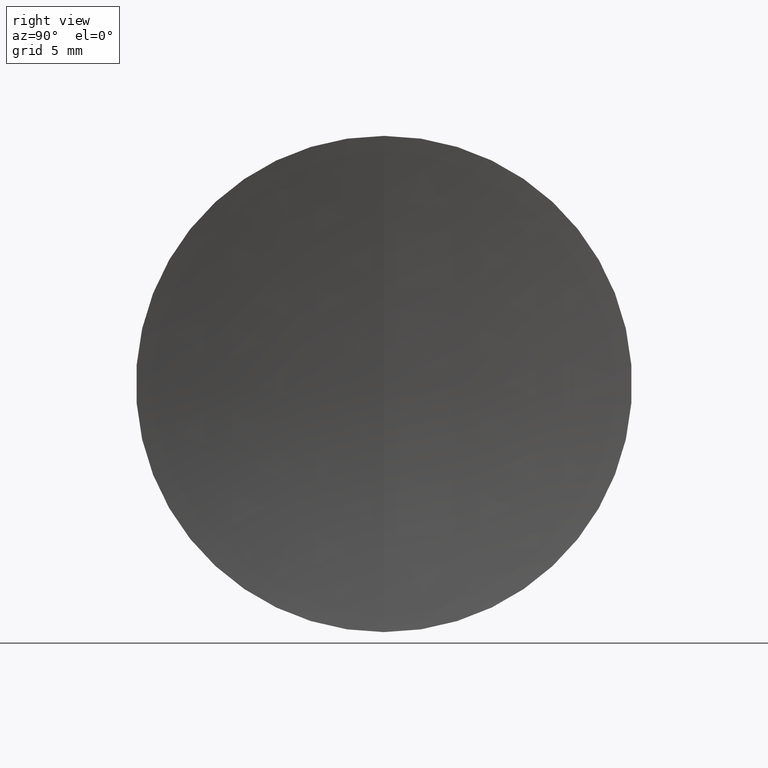
[diagram: clean part render]
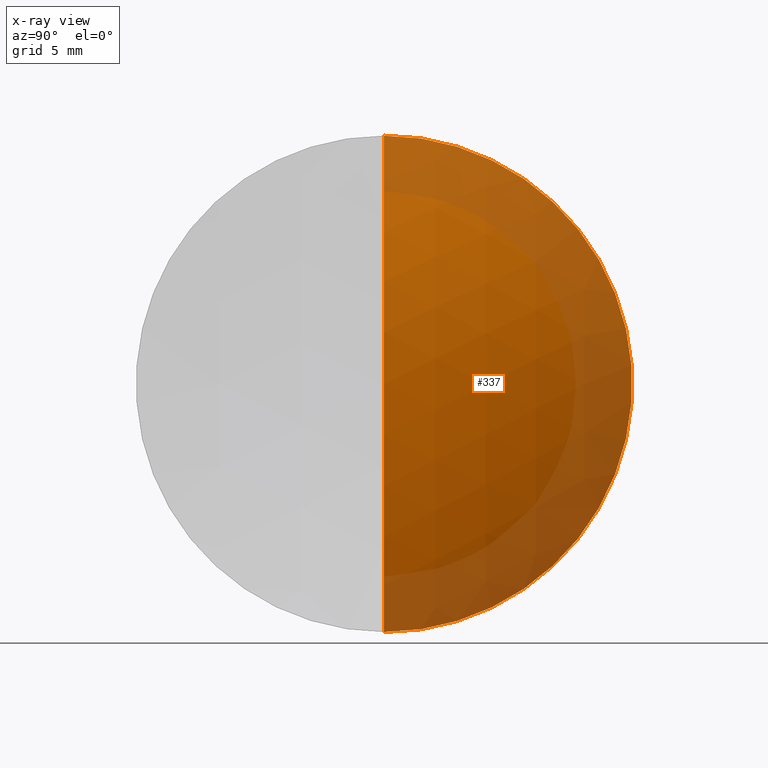
[diagram: x-ray — body ghosted, one internal face saturated and labeled with its STEP entity id]
A machine part, right view, then the same camera in x-ray: the body is ghosted and one INTERNAL B-rep face — a face not visible from any outside direction — is saturated and labeled: STEP entity #337.
In plain terms, the highlighted spherical surface has radius 33.91 mm.
Its self-contained STEP definition (entity closure, byte-faithful):
#23 = AXIS2_PLACEMENT_3D ( 'NONE', #227, #240, #153 ) ;
#68 = DIRECTION ( 'NONE',  ( 0.0000000000000000000, 1.000000000000000000, 0.0000000000000000000 ) ) ;
#87 = CIRCLE ( 'NONE', #108, 33.91000000000000400 ) ;
#108 = AXIS2_PLACEMENT_3D ( 'NONE', #190, #253, #323 ) ;
#111 = CARTESIAN_POINT ( 'NONE',  ( 68.06296674873206600, 0.0000000000000000000, 0.0000000000000000000 ) ) ;
#125 = DIRECTION ( 'NONE',  ( -0.0000000000000000000, 1.000000000000000000, 1.224646799147353200E-016 ) ) ;
#126 = DIRECTION ( 'NONE',  ( 0.0000000000000000000, -1.224646799147353200E-016, 1.000000000000000000 ) ) ;
#127 = AXIS2_PLACEMENT_3D ( 'NONE', #141, #68, #139 ) ;
#139 = DIRECTION ( 'NONE',  ( 0.0000000000000000000, 0.0000000000000000000, 1.000000000000000000 ) ) ;
#141 = CARTESIAN_POINT ( 'NONE',  ( 68.06296674873206600, 0.0000000000000000000, 0.0000000000000000000 ) ) ;
#153 = DIRECTION ( 'NONE',  ( 0.0000000000000000000, 0.0000000000000000000, 1.000000000000000000 ) ) ;
#173 = CARTESIAN_POINT ( 'NONE',  ( 98.47493971991563900, 1.836970198721030000E-015, -15.00000000000000200 ) ) ;
#190 = CARTESIAN_POINT ( 'NONE',  ( 68.06296674873206600, 0.0000000000000000000, 0.0000000000000000000 ) ) ;
#191 = VERTEX_POINT ( 'NONE', #249 ) ;
#227 = CARTESIAN_POINT ( 'NONE',  ( 98.47493971991563900, 0.0000000000000000000, 0.0000000000000000000 ) ) ;
#229 = EDGE_CURVE ( 'NONE', #235, #261, #335, .T. ) ;
#235 = VERTEX_POINT ( 'NONE', #258 ) ;
#240 = DIRECTION ( 'NONE',  ( -1.000000000000000000, -0.0000000000000000000, -0.0000000000000000000 ) ) ;
#249 = CARTESIAN_POINT ( 'NONE',  ( 98.47493971991563900, 0.0000000000000000000, 15.00000000000000000 ) ) ;
#253 = DIRECTION ( 'NONE',  ( 0.0000000000000000000, -1.000000000000000000, 0.0000000000000000000 ) ) ;
#254 = EDGE_LOOP ( 'NONE', ( #276, #289, #278 ) ) ;
#257 = EDGE_CURVE ( 'NONE', #191, #261, #345, .T. ) ;
#258 = CARTESIAN_POINT ( 'NONE',  ( 101.9729667487320800, 0.0000000000000000000, 2.076388647954337400E-015 ) ) ;
#261 = VERTEX_POINT ( 'NONE', #173 ) ;
#276 = ORIENTED_EDGE ( 'NONE', *, *, #322, .F. ) ;
#278 = ORIENTED_EDGE ( 'NONE', *, *, #257, .F. ) ;
#289 = ORIENTED_EDGE ( 'NONE', *, *, #229, .T. ) ;
#306 = SPHERICAL_SURFACE ( 'NONE', #127, 33.91000000000000400 ) ;
#311 = FACE_OUTER_BOUND ( 'NONE', #254, .T. ) ;
#317 = AXIS2_PLACEMENT_3D ( 'NONE', #111, #125, #126 ) ;
#322 = EDGE_CURVE ( 'NONE', #235, #191, #87, .T. ) ;
#323 = DIRECTION ( 'NONE',  ( 0.0000000000000000000, 0.0000000000000000000, -1.000000000000000000 ) ) ;
#335 = CIRCLE ( 'NONE', #317, 33.91000000000000400 ) ;
#337 = ADVANCED_FACE ( 'NONE', ( #311 ), #306, .T. ) ;
#345 = CIRCLE ( 'NONE', #23, 15.00000000000000000 ) ;